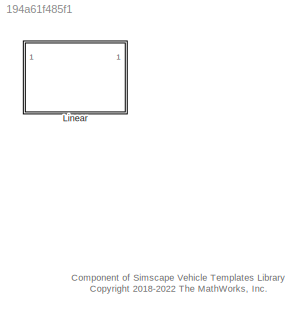
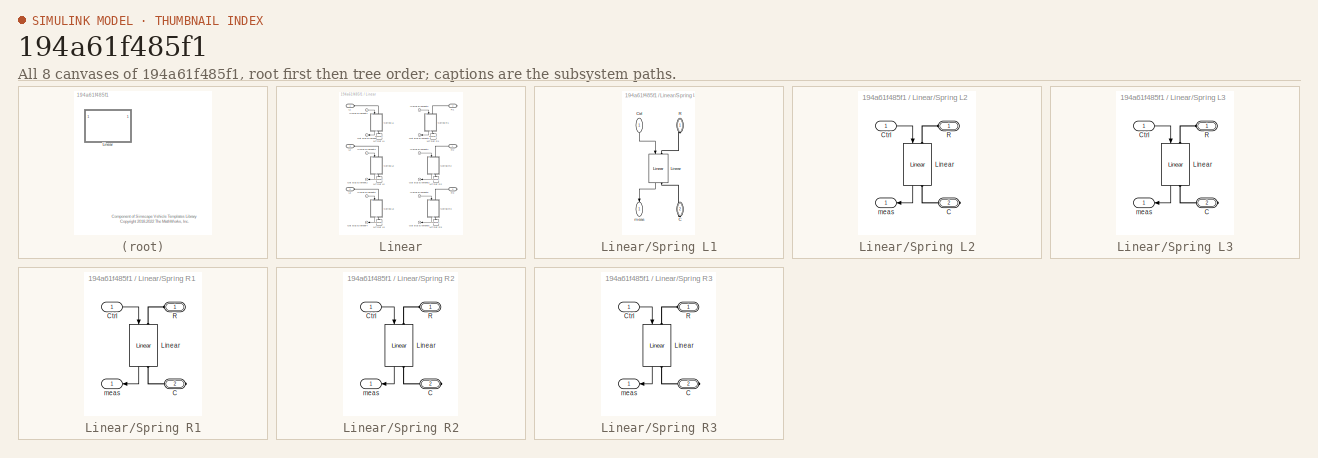
[diagram: thumbnail index - all 8 canvases of the model, root first then tree order]
MODEL slx_194a61f485f1
KIND library
CONFIG AbsTol = auto
CONFIG EnableMultiTasking = off
CONFIG FixedStep = auto
CONFIG MaxStep = auto
CONFIG MinStep = auto
CONFIG RelTol = 1e-3
CONFIG SampleTimeConstraint = Unconstrained
CONFIG SolverName = VariableStepAuto
CONFIG StartTime = 0.0
CONFIG StopTime = 10.0
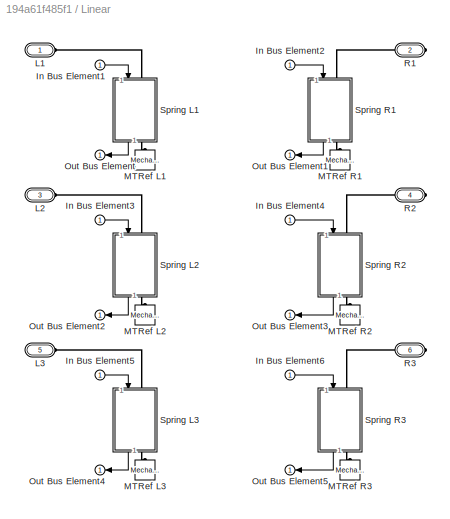
BLOCK [SubSystem] Linear
  Ports = [1, 1, 0, 0, 0, 3, 3]
  RequestExecContextInheritance = off
  VariantControl = Linear
BLOCK [Inport] Linear/In Bus Element1
BLOCK [Inport] Linear/In Bus Element2
BLOCK [Inport] Linear/In Bus Element3
BLOCK [Inport] Linear/In Bus Element4
BLOCK [Inport] Linear/In Bus Element5
BLOCK [Inport] Linear/In Bus Element6
BLOCK [PMIOPort] Linear/L1
  Side = Left
BLOCK [PMIOPort] Linear/L2
  Port = 3
  Side = Left
BLOCK [PMIOPort] Linear/L3
  Port = 5
  Side = Left
BLOCK [Reference] Linear/MTRef L1  REF=fl_lib/Mechanical/Translational
Elements/Mechanical
Translational
Reference
  NameLocation = right
  Ports = [0, 0, 0, 0, 0, 1]
  SourceBlock = fl_lib/Mechanical/Translational\nElements/Mechanical\nTranslational\nReference
  SourceProductBaseCode = PW,SS,VE
  SourceType = Mechanical\nTranslational\nReference
BLOCK [Reference] Linear/MTRef L2  REF=fl_lib/Mechanical/Translational
Elements/Mechanical
Translational
Reference
  NameLocation = right
  Ports = [0, 0, 0, 0, 0, 1]
  SourceBlock = fl_lib/Mechanical/Translational\nElements/Mechanical\nTranslational\nReference
  SourceProductBaseCode = PW,SS,VE
  SourceType = Mechanical\nTranslational\nReference
BLOCK [Reference] Linear/MTRef L3  REF=fl_lib/Mechanical/Translational
Elements/Mechanical
Translational
Reference
  NameLocation = right
  Ports = [0, 0, 0, 0, 0, 1]
  SourceBlock = fl_lib/Mechanical/Translational\nElements/Mechanical\nTranslational\nReference
  SourceProductBaseCode = PW,SS,VE
  SourceType = Mechanical\nTranslational\nReference
BLOCK [Reference] Linear/MTRef R1  REF=fl_lib/Mechanical/Translational
Elements/Mechanical
Translational
Reference
  NameLocation = right
  Ports = [0, 0, 0, 0, 0, 1]
  SourceBlock = fl_lib/Mechanical/Translational\nElements/Mechanical\nTranslational\nReference
  SourceProductBaseCode = PW,SS,VE
  SourceType = Mechanical\nTranslational\nReference
BLOCK [Reference] Linear/MTRef R2  REF=fl_lib/Mechanical/Translational
Elements/Mechanical
Translational
Reference
  NameLocation = right
  Ports = [0, 0, 0, 0, 0, 1]
  SourceBlock = fl_lib/Mechanical/Translational\nElements/Mechanical\nTranslational\nReference
  SourceProductBaseCode = PW,SS,VE
  SourceType = Mechanical\nTranslational\nReference
BLOCK [Reference] Linear/MTRef R3  REF=fl_lib/Mechanical/Translational
Elements/Mechanical
Translational
Reference
  NameLocation = right
  Ports = [0, 0, 0, 0, 0, 1]
  SourceBlock = fl_lib/Mechanical/Translational\nElements/Mechanical\nTranslational\nReference
  SourceProductBaseCode = PW,SS,VE
  SourceType = Mechanical\nTranslational\nReference
BLOCK [Outport] Linear/Out Bus Element
  NameLocation = top
  VectorParamsAs1DForOutWhenUnconnected = off
BLOCK [Outport] Linear/Out Bus Element1
  NameLocation = top
  VectorParamsAs1DForOutWhenUnconnected = off
BLOCK [Outport] Linear/Out Bus Element2
  NameLocation = top
  VectorParamsAs1DForOutWhenUnconnected = off
BLOCK [Outport] Linear/Out Bus Element3
  NameLocation = top
  VectorParamsAs1DForOutWhenUnconnected = off
BLOCK [Outport] Linear/Out Bus Element4
  NameLocation = top
  VectorParamsAs1DForOutWhenUnconnected = off
BLOCK [Outport] Linear/Out Bus Element5
  NameLocation = top
  VectorParamsAs1DForOutWhenUnconnected = off
BLOCK [PMIOPort] Linear/R1
  Port = 2
  Side = Right
BLOCK [PMIOPort] Linear/R2
  Port = 4
  Side = Right
BLOCK [PMIOPort] Linear/R3
  Port = 6
  Side = Right
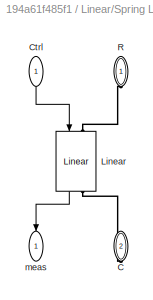
BLOCK [SubSystem] Linear/Spring L1
  NameLocation = right
  Ports = [1, 1, 0, 0, 0, 1, 1]
  RequestExecContextInheritance = off
BLOCK [PMIOPort] Linear/Spring L1/C
  NameLocation = right
  Port = 2
  Side = Right
BLOCK [Inport] Linear/Spring L1/Ctrl
  NameLocation = left
BLOCK [Reference] Linear/Spring L1/Linear  REF=Spring_Basics/Linear
  NameLocation = right
  Ports = [1, 1, 0, 0, 0, 1, 1]
  SourceBlock = Spring_Basics/Linear
  SourceType = Linear Spring
BLOCK [PMIOPort] Linear/Spring L1/R
  NameLocation = left
  Side = Left
BLOCK [Outport] Linear/Spring L1/meas
  NameLocation = left
  VectorParamsAs1DForOutWhenUnconnected = off
BLOCK [SubSystem] Linear/Spring L2
  NameLocation = right
  Ports = [1, 1, 0, 0, 0, 1, 1]
  RequestExecContextInheritance = off
BLOCK [PMIOPort] Linear/Spring L2/C
  NameLocation = top
  Port = 2
  Side = Right
BLOCK [Inport] Linear/Spring L2/Ctrl
BLOCK [Reference] Linear/Spring L2/Linear  REF=Spring_Basics/Linear
  NameLocation = right
  Ports = [1, 1, 0, 0, 0, 1, 1]
  SourceBlock = Spring_Basics/Linear
  SourceType = Linear Spring
BLOCK [PMIOPort] Linear/Spring L2/R
  NameLocation = top
  Side = Left
BLOCK [Outport] Linear/Spring L2/meas
  NameLocation = top
  VectorParamsAs1DForOutWhenUnconnected = off
BLOCK [SubSystem] Linear/Spring L3
  NameLocation = right
  Ports = [1, 1, 0, 0, 0, 1, 1]
  RequestExecContextInheritance = off
BLOCK [PMIOPort] Linear/Spring L3/C
  NameLocation = top
  Port = 2
  Side = Right
BLOCK [Inport] Linear/Spring L3/Ctrl
BLOCK [Reference] Linear/Spring L3/Linear  REF=Spring_Basics/Linear
  NameLocation = right
  Ports = [1, 1, 0, 0, 0, 1, 1]
  SourceBlock = Spring_Basics/Linear
  SourceType = Linear Spring
BLOCK [PMIOPort] Linear/Spring L3/R
  NameLocation = top
  Side = Left
BLOCK [Outport] Linear/Spring L3/meas
  NameLocation = top
  VectorParamsAs1DForOutWhenUnconnected = off
BLOCK [SubSystem] Linear/Spring R1
  NameLocation = right
  Ports = [1, 1, 0, 0, 0, 1, 1]
  RequestExecContextInheritance = off
BLOCK [PMIOPort] Linear/Spring R1/C
  NameLocation = top
  Port = 2
  Side = Right
BLOCK [Inport] Linear/Spring R1/Ctrl
BLOCK [Reference] Linear/Spring R1/Linear  REF=Spring_Basics/Linear
  NameLocation = right
  Ports = [1, 1, 0, 0, 0, 1, 1]
  SourceBlock = Spring_Basics/Linear
  SourceType = Linear Spring
BLOCK [PMIOPort] Linear/Spring R1/R
  Side = Left
BLOCK [Outport] Linear/Spring R1/meas
  NameLocation = top
  VectorParamsAs1DForOutWhenUnconnected = off
BLOCK [SubSystem] Linear/Spring R2
  NameLocation = right
  Ports = [1, 1, 0, 0, 0, 1, 1]
  RequestExecContextInheritance = off
BLOCK [PMIOPort] Linear/Spring R2/C
  NameLocation = top
  Port = 2
  Side = Right
BLOCK [Inport] Linear/Spring R2/Ctrl
BLOCK [Reference] Linear/Spring R2/Linear  REF=Spring_Basics/Linear
  NameLocation = right
  Ports = [1, 1, 0, 0, 0, 1, 1]
  SourceBlock = Spring_Basics/Linear
  SourceType = Linear Spring
BLOCK [PMIOPort] Linear/Spring R2/R
  NameLocation = top
  Side = Left
BLOCK [Outport] Linear/Spring R2/meas
  NameLocation = top
  VectorParamsAs1DForOutWhenUnconnected = off
BLOCK [SubSystem] Linear/Spring R3
  NameLocation = right
  Ports = [1, 1, 0, 0, 0, 1, 1]
  RequestExecContextInheritance = off
BLOCK [PMIOPort] Linear/Spring R3/C
  NameLocation = top
  Port = 2
  Side = Right
BLOCK [Inport] Linear/Spring R3/Ctrl
BLOCK [Reference] Linear/Spring R3/Linear  REF=Spring_Basics/Linear
  NameLocation = right
  Ports = [1, 1, 0, 0, 0, 1, 1]
  SourceBlock = Spring_Basics/Linear
  SourceType = Linear Spring
BLOCK [PMIOPort] Linear/Spring R3/R
  NameLocation = top
  Side = Left
BLOCK [Outport] Linear/Spring R3/meas
  NameLocation = top
  VectorParamsAs1DForOutWhenUnconnected = off
ANNOTATION (root): Component of Simscape Vehicle Templates Library <copyright redacted>
LINE Linear/In Bus Element1:1 -> Linear/Spring L1:1
LINE Linear/In Bus Element2:1 -> Linear/Spring R1:1
LINE Linear/In Bus Element3:1 -> Linear/Spring L2:1
LINE Linear/In Bus Element4:1 -> Linear/Spring R2:1
LINE Linear/In Bus Element5:1 -> Linear/Spring L3:1
LINE Linear/In Bus Element6:1 -> Linear/Spring R3:1
LINE Linear/Spring L1/Ctrl:1 -> Linear/Spring L1/Linear:1
LINE Linear/Spring L1/Linear:1 -> Linear/Spring L1/meas:1
LINE Linear/Spring L1:1 -> Linear/Out Bus Element:1
LINE Linear/Spring L2/Ctrl:1 -> Linear/Spring L2/Linear:1
LINE Linear/Spring L2/Linear:1 -> Linear/Spring L2/meas:1
LINE Linear/Spring L2:1 -> Linear/Out Bus Element2:1
LINE Linear/Spring L3/Ctrl:1 -> Linear/Spring L3/Linear:1
LINE Linear/Spring L3/Linear:1 -> Linear/Spring L3/meas:1
LINE Linear/Spring L3:1 -> Linear/Out Bus Element4:1
LINE Linear/Spring R1/Ctrl:1 -> Linear/Spring R1/Linear:1
LINE Linear/Spring R1/Linear:1 -> Linear/Spring R1/meas:1
LINE Linear/Spring R1:1 -> Linear/Out Bus Element1:1
LINE Linear/Spring R2/Ctrl:1 -> Linear/Spring R2/Linear:1
LINE Linear/Spring R2/Linear:1 -> Linear/Spring R2/meas:1
LINE Linear/Spring R2:1 -> Linear/Out Bus Element3:1
LINE Linear/Spring R3/Ctrl:1 -> Linear/Spring R3/Linear:1
LINE Linear/Spring R3/Linear:1 -> Linear/Spring R3/meas:1
LINE Linear/Spring R3:1 -> Linear/Out Bus Element5:1
PLINE Linear/L1:RConn1 -- Linear/Spring L1:LConn1
PLINE Linear/L2:RConn1 -- Linear/Spring L2:LConn1
PLINE Linear/L3:RConn1 -- Linear/Spring L3:LConn1
PLINE Linear/MTRef L1:LConn1 -- Linear/Spring L1:RConn1
PLINE Linear/MTRef L2:LConn1 -- Linear/Spring L2:RConn1
PLINE Linear/MTRef L3:LConn1 -- Linear/Spring L3:RConn1
PLINE Linear/MTRef R1:LConn1 -- Linear/Spring R1:RConn1
PLINE Linear/MTRef R2:LConn1 -- Linear/Spring R2:RConn1
PLINE Linear/MTRef R3:LConn1 -- Linear/Spring R3:RConn1
PLINE Linear/R1:RConn1 -- Linear/Spring R1:LConn1
PLINE Linear/R2:RConn1 -- Linear/Spring R2:LConn1
PLINE Linear/R3:RConn1 -- Linear/Spring R3:LConn1
PLINE Linear/Spring L1/C:RConn1 -- Linear/Spring L1/Linear:RConn1
PLINE Linear/Spring L1/Linear:LConn1 -- Linear/Spring L1/R:RConn1
PLINE Linear/Spring L2/C:RConn1 -- Linear/Spring L2/Linear:RConn1
PLINE Linear/Spring L2/Linear:LConn1 -- Linear/Spring L2/R:RConn1
PLINE Linear/Spring L3/C:RConn1 -- Linear/Spring L3/Linear:RConn1
PLINE Linear/Spring L3/Linear:LConn1 -- Linear/Spring L3/R:RConn1
PLINE Linear/Spring R1/C:RConn1 -- Linear/Spring R1/Linear:RConn1
PLINE Linear/Spring R1/Linear:LConn1 -- Linear/Spring R1/R:RConn1
PLINE Linear/Spring R2/C:RConn1 -- Linear/Spring R2/Linear:RConn1
PLINE Linear/Spring R2/Linear:LConn1 -- Linear/Spring R2/R:RConn1
PLINE Linear/Spring R3/C:RConn1 -- Linear/Spring R3/Linear:RConn1
PLINE Linear/Spring R3/Linear:LConn1 -- Linear/Spring R3/R:RConn1
